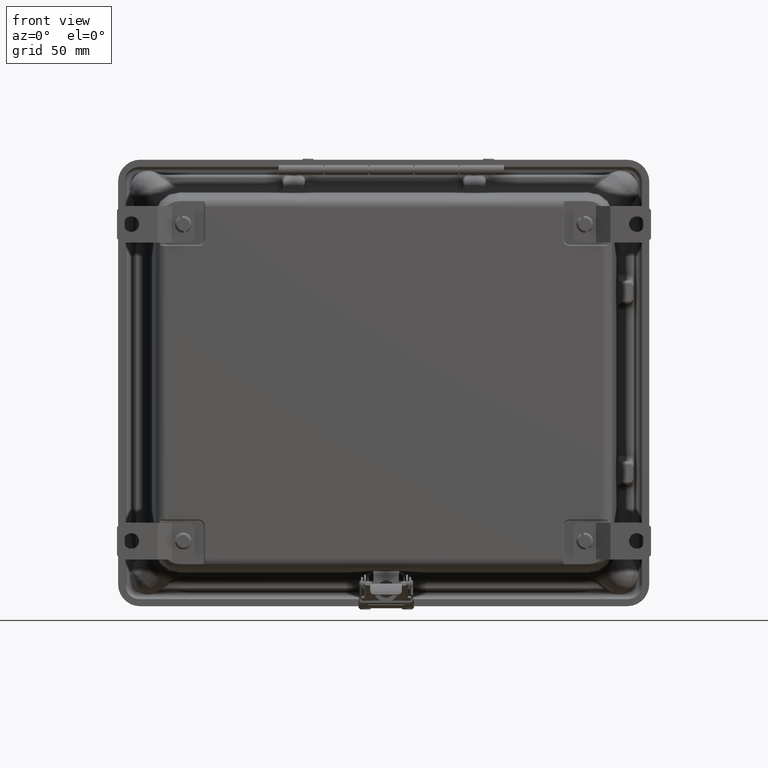
[diagram: clean part render]
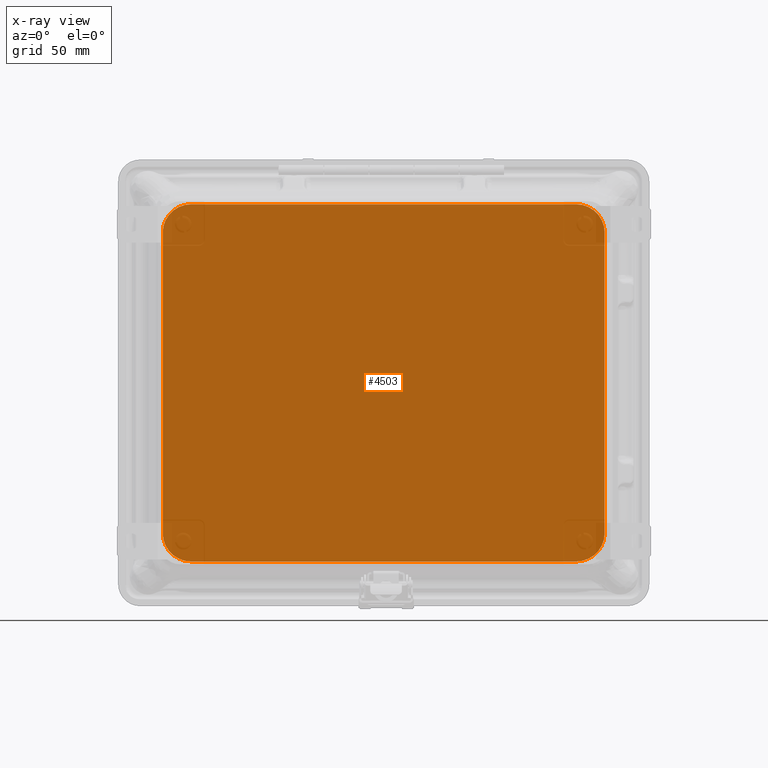
[diagram: x-ray — body ghosted, one internal face saturated and labeled with its STEP entity id]
A machine part, front view, then the same camera in x-ray: the body is ghosted and one INTERNAL B-rep face — a face not visible from any outside direction — is saturated and labeled: STEP entity #4503.
In plain terms, the highlighted planar face has unit normal (0, 1, 0).
Its self-contained STEP definition (entity closure, byte-faithful):
#943 = DIRECTION ( 'NONE',  ( -0.0000000000000000000, 1.000000000000000000, -0.0000000000000000000 ) ) ;
#3148 = VECTOR ( 'NONE', #22908, 39.37007874015748100 ) ;
#3627 = DIRECTION ( 'NONE',  ( 0.0000000000000000000, 0.0000000000000000000, -1.000000000000000000 ) ) ;
#4503 = ADVANCED_FACE ( 'NONE', ( #51288 ), #69362, .F. ) ;
#7021 = CARTESIAN_POINT ( 'NONE',  ( 4.268000000000001600, 0.1299999999999999800, 3.328999999999999700 ) ) ;
#7504 = AXIS2_PLACEMENT_3D ( 'NONE', #7021, #45352, #12517 ) ;
#7954 = DIRECTION ( 'NONE',  ( -1.000000000000000000, 0.0000000000000000000, 0.0000000000000000000 ) ) ;
#7988 = ORIENTED_EDGE ( 'NONE', *, *, #17353, .T. ) ;
#8930 = CARTESIAN_POINT ( 'NONE',  ( -5.400000000000002100, 0.1299999999999999800, -4.462000000000001500 ) ) ;
#9370 = EDGE_CURVE ( 'NONE', #37810, #60779, #20696, .T. ) ;
#10599 = CIRCLE ( 'NONE', #33008, 0.6298721315829047800 ) ;
#11837 = VECTOR ( 'NONE', #28144, 39.37007874015748100 ) ;
#11975 = CARTESIAN_POINT ( 'NONE',  ( 4.897872131582905000, 0.1299999999999999800, 3.328999999999999700 ) ) ;
#12037 = EDGE_CURVE ( 'NONE', #58936, #61719, #10599, .T. ) ;
#12269 = ORIENTED_EDGE ( 'NONE', *, *, #63571, .T. ) ;
#12517 = DIRECTION ( 'NONE',  ( 0.0000000000000000000, 0.0000000000000000000, -1.000000000000000000 ) ) ;
#12520 = VECTOR ( 'NONE', #7954, 39.37007874015748100 ) ;
#15501 = ORIENTED_EDGE ( 'NONE', *, *, #43509, .T. ) ;
#17321 = EDGE_LOOP ( 'NONE', ( #7988, #57160, #48367, #58535, #12269, #15501, #47131, #30732 ) ) ;
#17353 = EDGE_CURVE ( 'NONE', #32215, #58936, #56340, .T. ) ;
#18294 = CARTESIAN_POINT ( 'NONE',  ( 4.268000000000001600, 0.1299999999999999800, -3.958872131582903200 ) ) ;
#19204 = AXIS2_PLACEMENT_3D ( 'NONE', #31383, #69763, #36876 ) ;
#19807 = CARTESIAN_POINT ( 'NONE',  ( -4.267999999999998000, 0.1299999999999999800, -3.958872131582904100 ) ) ;
#20003 = LINE ( 'NONE', #51508, #45762 ) ;
#20696 = CIRCLE ( 'NONE', #46650, 0.6298721315829042300 ) ;
#22908 = DIRECTION ( 'NONE',  ( 0.0000000000000000000, 0.0000000000000000000, -1.000000000000000000 ) ) ;
#23779 = VERTEX_POINT ( 'NONE', #37198 ) ;
#25711 = EDGE_CURVE ( 'NONE', #61719, #37810, #67407, .T. ) ;
#27006 = VERTEX_POINT ( 'NONE', #52535 ) ;
#28144 = DIRECTION ( 'NONE',  ( 1.000000000000000000, 0.0000000000000000000, -1.280153698999186300E-016 ) ) ;
#28641 = CARTESIAN_POINT ( 'NONE',  ( 4.897872131582907700, 0.1299999999999999800, -3.328999999999998800 ) ) ;
#30093 = EDGE_CURVE ( 'NONE', #41082, #32215, #39634, .T. ) ;
#30385 = CARTESIAN_POINT ( 'NONE',  ( -4.897872131582902400, 0.1299999999999999800, -3.328999999999999700 ) ) ;
#30732 = ORIENTED_EDGE ( 'NONE', *, *, #30093, .T. ) ;
#31383 = CARTESIAN_POINT ( 'NONE',  ( -4.267999999999999800, 0.1299999999999999800, 3.328999999999999700 ) ) ;
#31405 = CARTESIAN_POINT ( 'NONE',  ( 4.268000000000001600, 0.1299999999999999800, -3.328999999999998800 ) ) ;
#32215 = VERTEX_POINT ( 'NONE', #11975 ) ;
#33008 = AXIS2_PLACEMENT_3D ( 'NONE', #31405, #69783, #36904 ) ;
#33843 = CARTESIAN_POINT ( 'NONE',  ( -4.267999999999998000, 0.1299999999999999800, -3.328999999999999700 ) ) ;
#36474 = DIRECTION ( 'NONE',  ( 0.0000000000000000000, -1.000000000000000000, 0.0000000000000000000 ) ) ;
#36876 = DIRECTION ( 'NONE',  ( 0.0000000000000000000, 0.0000000000000000000, -1.000000000000000000 ) ) ;
#36904 = DIRECTION ( 'NONE',  ( 0.0000000000000000000, 0.0000000000000000000, -1.000000000000000000 ) ) ;
#37198 = CARTESIAN_POINT ( 'NONE',  ( -4.267999999999999800, 0.1299999999999999800, 3.958872131582903600 ) ) ;
#37810 = VERTEX_POINT ( 'NONE', #19807 ) ;
#39343 = DIRECTION ( 'NONE',  ( 0.0000000000000000000, 0.0000000000000000000, -1.000000000000000000 ) ) ;
#39634 = CIRCLE ( 'NONE', #7504, 0.6298721315829042300 ) ;
#41082 = VERTEX_POINT ( 'NONE', #52799 ) ;
#42781 = EDGE_CURVE ( 'NONE', #23779, #41082, #68470, .T. ) ;
#43509 = EDGE_CURVE ( 'NONE', #27006, #23779, #63233, .T. ) ;
#45352 = DIRECTION ( 'NONE',  ( -0.0000000000000000000, 1.000000000000000000, -0.0000000000000000000 ) ) ;
#45762 = VECTOR ( 'NONE', #57019, 39.37007874015748100 ) ;
#46279 = CARTESIAN_POINT ( 'NONE',  ( -5.400000000000002100, 0.1299999999999999800, -3.958872131582904100 ) ) ;
#46650 = AXIS2_PLACEMENT_3D ( 'NONE', #33843, #943, #39343 ) ;
#47131 = ORIENTED_EDGE ( 'NONE', *, *, #42781, .T. ) ;
#48367 = ORIENTED_EDGE ( 'NONE', *, *, #25711, .T. ) ;
#51288 = FACE_OUTER_BOUND ( 'NONE', #17321, .T. ) ;
#51508 = CARTESIAN_POINT ( 'NONE',  ( -4.897872131582903200, 0.1299999999999999800, -4.462000000000001500 ) ) ;
#52535 = CARTESIAN_POINT ( 'NONE',  ( -4.897872131582902400, 0.1299999999999999800, 3.328999999999999700 ) ) ;
#52799 = CARTESIAN_POINT ( 'NONE',  ( 4.268000000000001600, 0.1299999999999999800, 3.958872131582904100 ) ) ;
#55804 = CARTESIAN_POINT ( 'NONE',  ( 4.897872131582907700, 0.1299999999999999800, -4.462000000000000600 ) ) ;
#56340 = LINE ( 'NONE', #55804, #3148 ) ;
#57019 = DIRECTION ( 'NONE',  ( 1.641242411333291200E-016, -0.0000000000000000000, 1.000000000000000000 ) ) ;
#57160 = ORIENTED_EDGE ( 'NONE', *, *, #12037, .T. ) ;
#58323 = AXIS2_PLACEMENT_3D ( 'NONE', #8930, #36474, #3627 ) ;
#58535 = ORIENTED_EDGE ( 'NONE', *, *, #9370, .T. ) ;
#58936 = VERTEX_POINT ( 'NONE', #28641 ) ;
#60779 = VERTEX_POINT ( 'NONE', #30385 ) ;
#60984 = CARTESIAN_POINT ( 'NONE',  ( -5.400000000000000400, 0.1299999999999999800, 3.958872131582904100 ) ) ;
#61719 = VERTEX_POINT ( 'NONE', #18294 ) ;
#63233 = CIRCLE ( 'NONE', #19204, 0.6298721315829036700 ) ;
#63571 = EDGE_CURVE ( 'NONE', #60779, #27006, #20003, .T. ) ;
#67407 = LINE ( 'NONE', #46279, #12520 ) ;
#68470 = LINE ( 'NONE', #60984, #11837 ) ;
#69362 = PLANE ( 'NONE',  #58323 ) ;
#69763 = DIRECTION ( 'NONE',  ( -0.0000000000000000000, 1.000000000000000000, -0.0000000000000000000 ) ) ;
#69783 = DIRECTION ( 'NONE',  ( -0.0000000000000000000, 1.000000000000000000, -0.0000000000000000000 ) ) ;